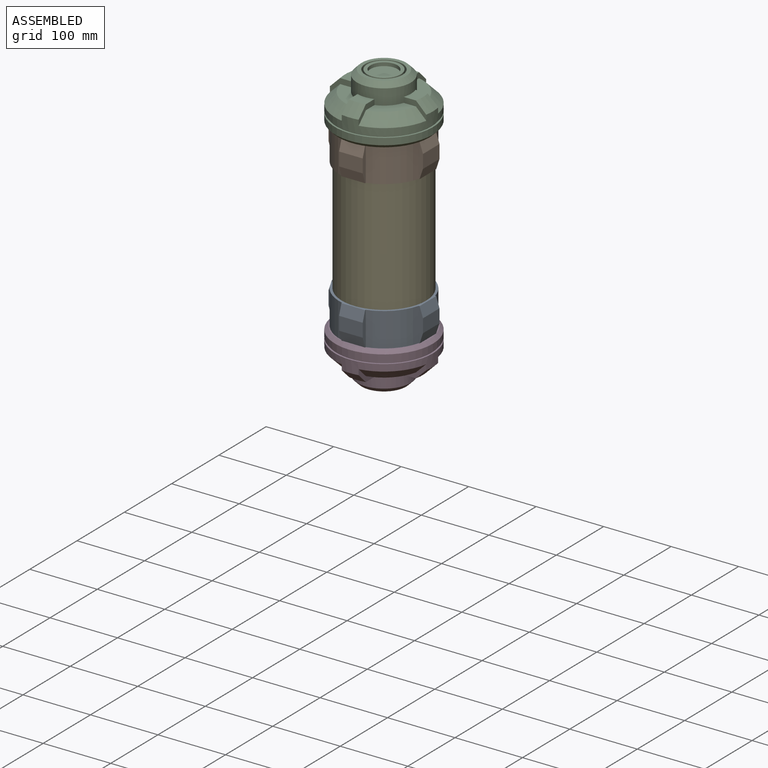
[diagram: assembled view]
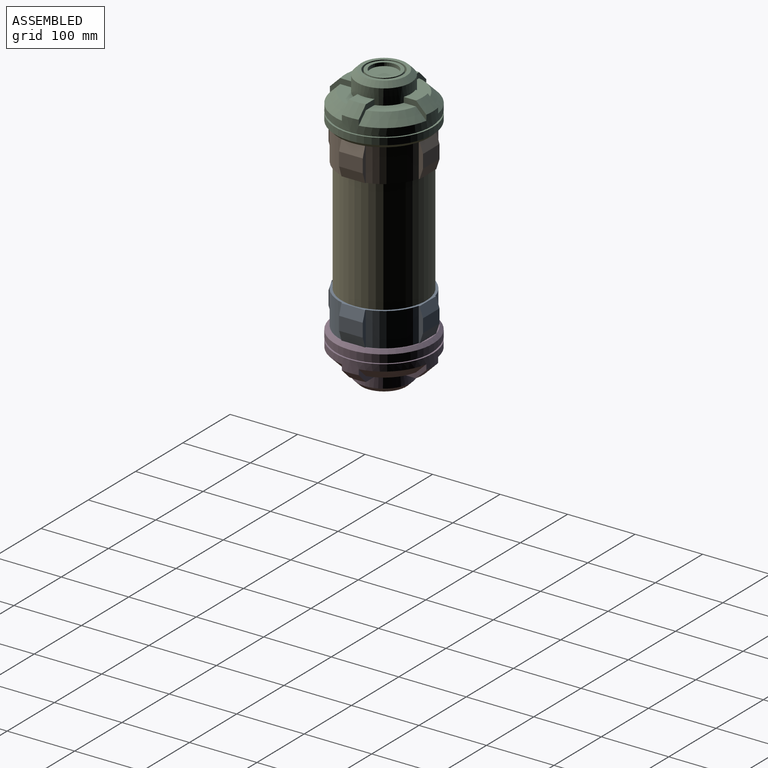
[diagram: assembled view, second angle]
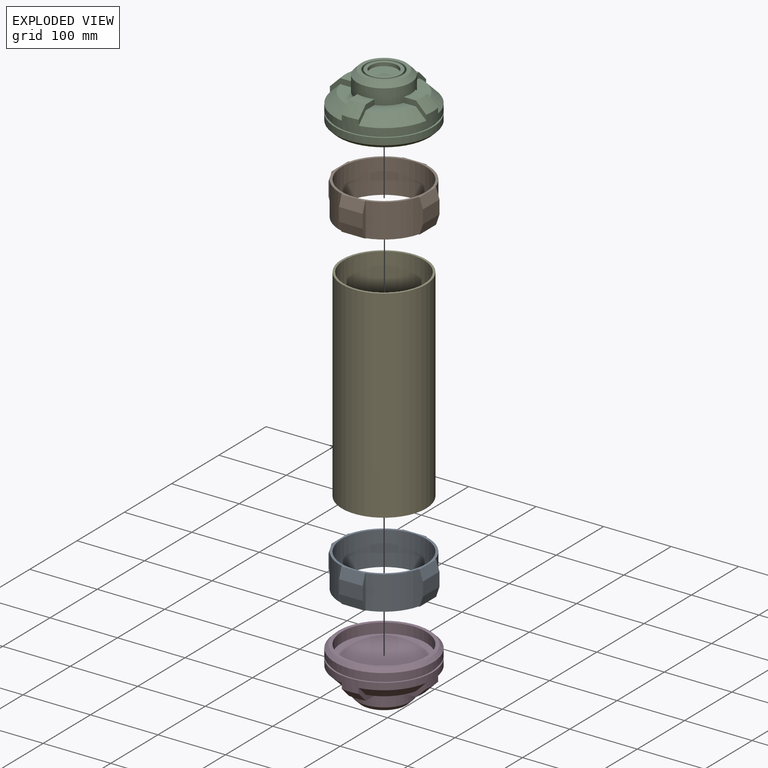
[diagram: exploded view]
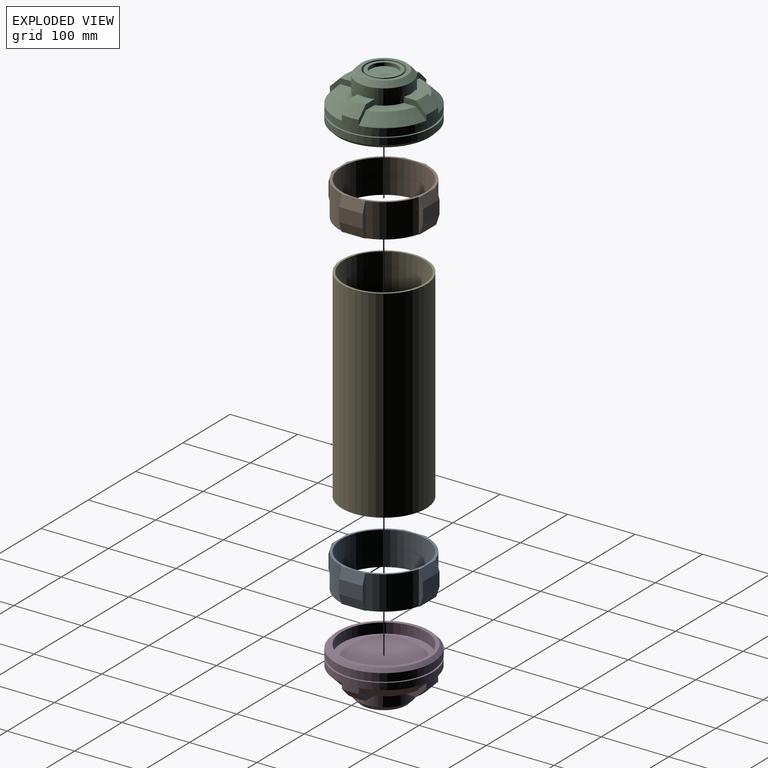
[diagram: exploded view, second angle]
ASSEMBLY  parts=5 mates=4
PART A: 27 faces, bbox 140x140x50 mm
  f0: cylinder r=66mm len=50mm, axis (0,0,-1), area 3412.4mm2, adj f5,f9,f15,f22
  f1: cylinder r=66mm len=50mm, axis (0,0,-1), area 3412.4mm2, adj f5,f8,f14,f22
  f2: cylinder r=66mm len=50mm, axis (0,0,-1), area 3412.4mm2, adj f5,f11,f12,f22
  f3: cylinder r=66mm len=50mm, axis (0,0,-1), area 3412.4mm2, adj f5,f7,f16,f22
  f4: cylinder r=62.5mm len=125mm, axis (0,0,-1), area 19635mm2, adj f5,f22
  f5: plane 130x130mm, normal (0,0,-1), area 1382.4mm2, adj f0,f1,f2,f3,f4,f7,f8,f9
  f6: plane 35x20mm, normal (0,1,0), area 700mm2, adj f7,f8,f21,f26
  f7: plane 50x6.36mm, normal (-1,0,0), area 243.1mm2, adj f3,f5,f6,f21,f22,f26
  f8: plane 50x6.36mm, normal (1,0,0), area 243.1mm2, adj f1,f5,f6,f21,f22,f26
  f9: plane 50x6.36mm, normal (-1,0,0), area 243.1mm2, adj f0,f5,f10,f19,f22,f24
  f10: plane 35x20mm, normal (0,-1,0), area 700mm2, adj f9,f11,f19,f24
  f11: plane 50x6.36mm, normal (1,0,0), area 243.1mm2, adj f2,f5,f10,f19,f22,f24
  f12: plane 50x6.36mm, normal (0,-1,0), area 243.1mm2, adj f2,f5,f13,f20,f22,f25
  f13: plane 35x20mm, normal (1,0,0), area 700mm2, adj f12,f14,f20,f25
  f14: plane 50x6.36mm, normal (0,1,0), area 243.1mm2, adj f1,f5,f13,f20,f22,f25
  f15: plane 50x6.36mm, normal (0,-1,0), area 243.1mm2, adj f0,f5,f17,f18,f22,f23
  f16: plane 50x6.36mm, normal (0,1,0), area 243.1mm2, adj f3,f5,f17,f18,f22,f23
  f17: plane 35x20mm, normal (-1,0,0), area 700mm2, adj f15,f16,f18,f23
  f18: plane 35x15mm, normal (-0.95,0,-0.32), area 553.4mm2, adj f5,f15,f16,f17
  f19: plane 35x15mm, normal (0,-0.95,-0.32), area 553.4mm2, adj f5,f9,f10,f11
  f20: plane 35x15mm, normal (0.95,0,-0.32), area 553.4mm2, adj f5,f12,f13,f14
  f21: plane 35x15mm, normal (0,0.95,-0.32), area 553.4mm2, adj f5,f6,f7,f8
  f22: plane 130x130mm, normal (0,0,1), area 1382.4mm2, adj f0,f1,f2,f3,f4,f7,f8,f9
  f23: plane 35x15mm, normal (-0.95,0,0.32), area 553.4mm2, adj f15,f16,f17,f22
  f24: plane 35x15mm, normal (0,-0.95,0.32), area 553.4mm2, adj f9,f10,f11,f22
  f25: plane 35x15mm, normal (0.95,0,0.32), area 553.4mm2, adj f12,f13,f14,f22
  f26: plane 35x15mm, normal (0,0.95,0.32), area 553.4mm2, adj f6,f7,f8,f22
PART B: same geometry as A
PART C: 42 faces, bbox 145.3x145.3x73.3 mm
  f0: cone r=57.5mm half-angle=45deg, axis (0,0,-1), area 1627.2mm2, adj f5,f15,f26,f36
  f1: cone r=57.5mm half-angle=45deg, axis (0,0,-1), area 1627.2mm2, adj f6,f15,f27,f33
  f2: cone r=57.5mm half-angle=45deg, axis (0,0,-1), area 1627.2mm2, adj f7,f15,f29,f35
  f3: cone r=57.5mm half-angle=45deg, axis (0,0,-1), area 1627.2mm2, adj f15,f16,f30,f32
  f4: cylinder r=40mm len=80mm, axis (0,0,-1), area 4966.9mm2, adj f5,f6,f7,f16,f25,f26,f27,f28
  f5: plane 43.63x43.63mm, normal (0,0,1), area 897.5mm2, adj f0,f4,f26,f36
  f6: plane 43.63x43.63mm, normal (0,0,1), area 897.5mm2, adj f1,f4,f27,f33
  f7: plane 43.63x43.63mm, normal (0,0,1), area 897.5mm2, adj f2,f4,f29,f35
  f8: cylinder r=62.5mm len=125mm, axis (0,0,-1), area 5890.5mm2, adj f11,f14
  f9: cylinder r=72.5mm len=145mm, axis (0,0,-1), area 4555.3mm2, adj f10,f12
  f10: plane 145x145mm, normal (0,0,1), area 1119.2mm2, adj f9,f13
  f11: plane 135x135mm, normal (0,0,-1), area 2042mm2, adj f8,f12
  f12: cone r=72.5mm half-angle=45deg, axis (0,0,1), area 3110mm2, adj f9,f11
  f13: cylinder r=70mm len=140mm, axis (0,0,-1), area 1319.5mm2, adj f10,f17
  f14: plane 125x125mm, normal (0,0,-1), area 12271.8mm2, adj f8
  f15: cylinder r=72.5mm len=145mm, axis (0,0,-1), area 5359.3mm2, adj f0,f1,f2,f3,f17,f26,f27,f29
  f16: plane 43.63x43.63mm, normal (0,0,1), area 897.5mm2, adj f3,f4,f30,f32
  f17: plane 145x145mm, normal (0,0,-1), area 1119.2mm2, adj f13,f15
  f18: cylinder r=27.5mm len=55mm, axis (0,0,-1), area 5183.6mm2, adj f19,f23
  f19: plane 66x66mm, normal (0,0,1), area 1045.4mm2, adj f18,f25
  f20: cylinder r=20mm len=40mm, axis (0,0,-1), area 628.3mm2, adj f21,f24
  f21: plane 50x50mm, normal (0,0,1), area 706.9mm2, adj f20,f22
  f22: cylinder r=25mm len=50mm, axis (0,0,-1), area 4712.4mm2, adj f21,f23
  f23: plane 55x55mm, normal (0,0,1), area 412.3mm2, adj f18,f22
  f24: plane 40x40mm, normal (0,0,1), area 1256.6mm2, adj f20
  f25: cone r=33mm half-angle=45deg, axis (0,0,-1), area 2270.3mm2, adj f4,f19
  f26: plane 33.77x23.35mm, normal (-1,0,0), area 267.3mm2, adj f0,f4,f5,f15,f28,f38
  f27: plane 33.77x23.35mm, normal (1,0,0), area 267.3mm2, adj f1,f4,f6,f15,f28,f38
  f28: plane 25x19.5mm, normal (0,0,1), area 442.6mm2, adj f4,f26,f27,f38
  f29: plane 33.77x23.35mm, normal (-1,0,0), area 267.3mm2, adj f2,f4,f7,f15,f31,f40
  f30: plane 33.77x23.35mm, normal (1,0,0), area 267.3mm2, adj f3,f4,f15,f16,f31,f40
  f31: plane 25x19.5mm, normal (0,0,1), area 442.6mm2, adj f4,f29,f30,f40
  f32: plane 33.77x23.35mm, normal (0,1,0), area 267.3mm2, adj f3,f4,f15,f16,f34,f41
  f33: plane 33.77x23.35mm, normal (0,-1,0), area 267.3mm2, adj f1,f4,f6,f15,f34,f41
  f34: plane 25x19.5mm, normal (0,0,1), area 442.6mm2, adj f4,f32,f33,f41
  f35: plane 33.77x23.35mm, normal (0,1,0), area 267.3mm2, adj f2,f4,f7,f15,f37,f39
  f36: plane 33.77x23.35mm, normal (0,-1,0), area 267.3mm2, adj f0,f4,f5,f15,f37,f39
  f37: plane 25x19.5mm, normal (0,0,1), area 442.6mm2, adj f4,f35,f36,f39
  f38: cone r=57.5mm half-angle=45deg, axis (0,0,-1), area 538.7mm2, adj f15,f26,f27,f28
  f39: cone r=57.5mm half-angle=45deg, axis (0,0,-1), area 538.7mm2, adj f15,f35,f36,f37
  f40: cone r=57.5mm half-angle=45deg, axis (0,0,-1), area 538.7mm2, adj f15,f29,f30,f31
  f41: cone r=57.5mm half-angle=45deg, axis (0,0,-1), area 538.7mm2, adj f15,f32,f33,f34
PART D: same geometry as C
PART E: 4 faces, bbox 125x125x300 mm
  f0: cylinder r=59.3mm len=300mm, axis (0,0,-1), area 111777.9mm2, adj f2,f3
  f1: cylinder r=62.5mm len=300mm, axis (0,0,-1), area 117809.7mm2, adj f2,f3
  f2: plane 125x125mm, normal (0,0,1), area 1224.5mm2, adj f0,f1
  f3: plane 125x125mm, normal (0,0,-1), area 1224.5mm2, adj f0,f1
PLACE A t=(-258.68,105.47,-67.44)mm
PLACE B t=(-258.68,105.47,152.56)mm
PLACE C t=(-26.17,29.93,-97.44)mm
PLACE D rot(axis=(1,0,0),180deg) t=(-26.17,29.93,232.56)mm
PLACE E t=(-26.17,29.93,33.56)mm
MATE fastened A.f0 <-> D.f8  axis (0,0,-1) through (-26.17,29.93,-67.44)mm
MATE fastened C.f8 <-> E.f0  axis (0,0,-1) through (-26.17,29.93,217.56)mm
MATE fastened D.f8 <-> E.f0  axis (0,0,1) through (-26.17,29.93,-82.44)mm
MATE fastened B.f0 <-> C.f8  axis (0,0,-1) through (-26.17,29.93,202.56)mm
